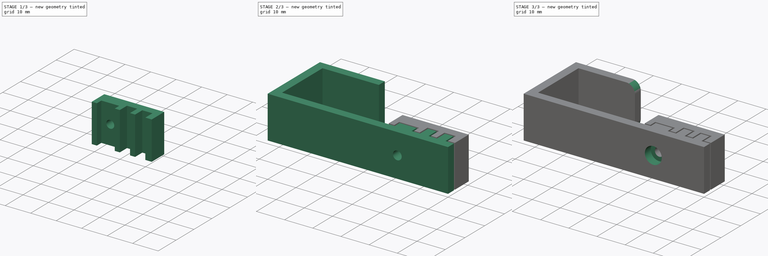
[diagram: build sequence overview — one tinted view per stage of 3, left to right]
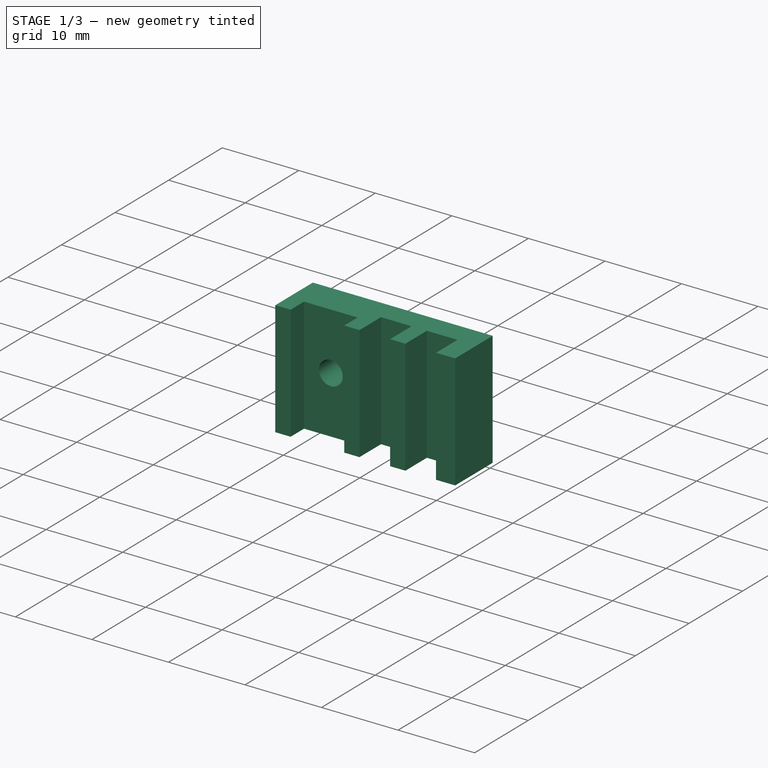
[diagram: stage 1 of 3 — iso view after this stage's code; geometry added in this stage tinted green]
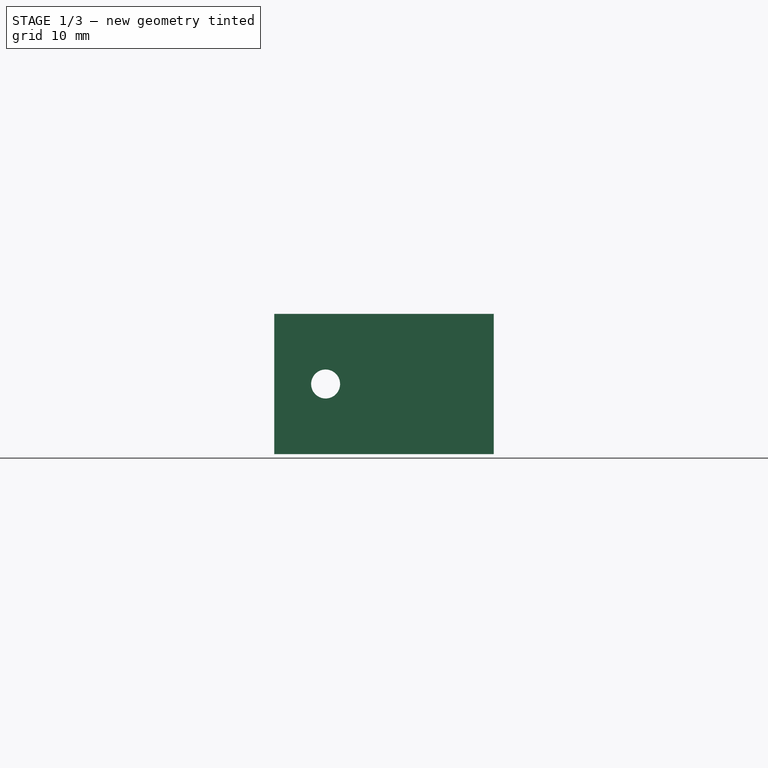
[diagram: stage 1 of 3 — front view after this stage's code; geometry added in this stage tinted green]
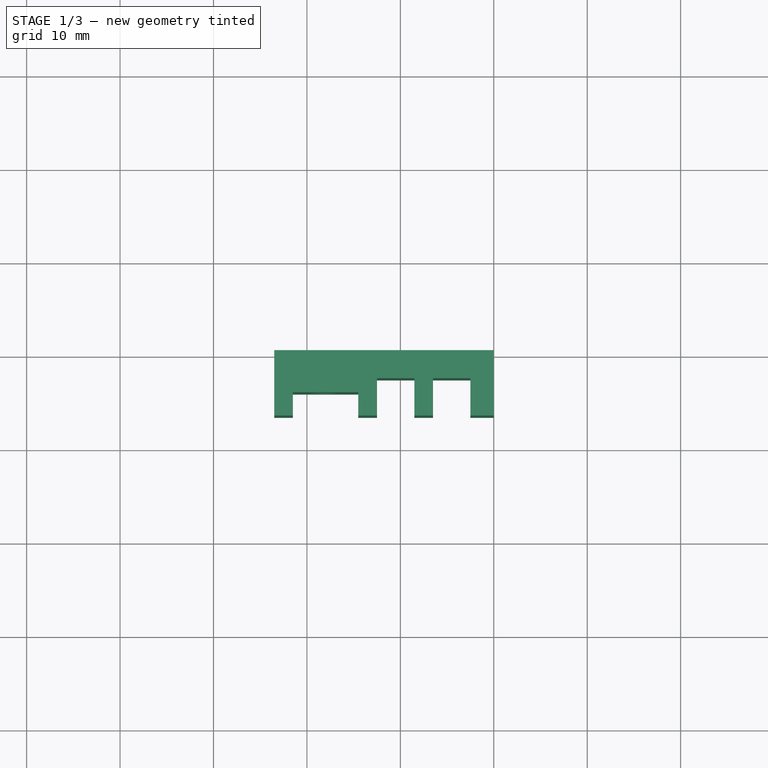
[diagram: stage 1 of 3 — top view after this stage's code; geometry added in this stage tinted green]
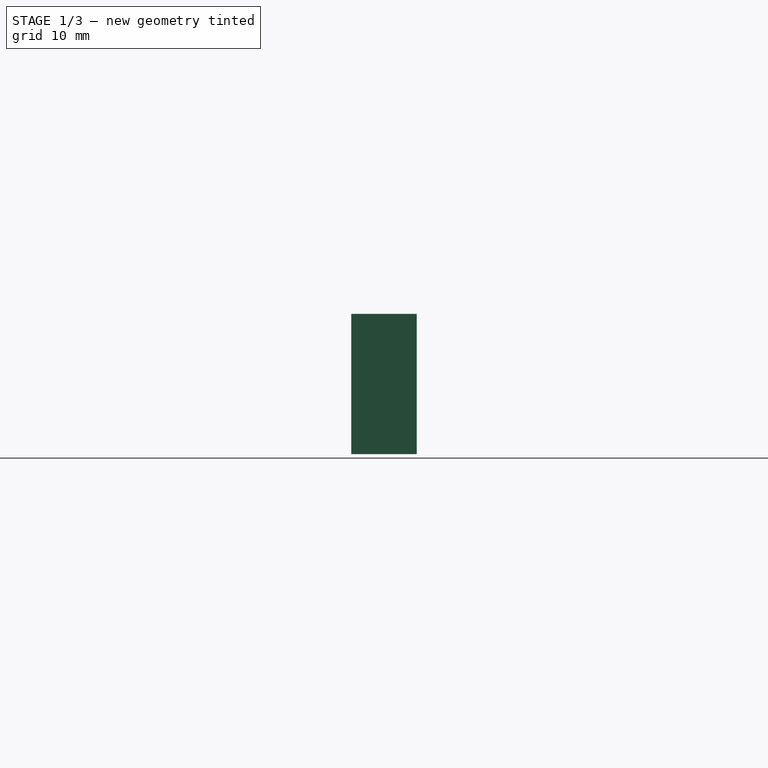
[diagram: stage 1 of 3 — right view after this stage's code; geometry added in this stage tinted green]
FCSTD DOCUMENT  (FreeCAD 1.0R39109 (Git))
Label: TarpKlemme
License: All rights reserved
LicenseURL: http://en.wikipedia.org/wiki/All_rights_reserved
objects: Sketcher::SketchObject×6, PartDesign::Pocket×4, PartDesign::Pad×2, PartDesign::Body×2, PartDesign::Fillet×1
note: 35 computed .brp shape members not serialized (recipe doc carries the construction recipe); baked Part::Feature solids carry a one-line shape summary decoded from their .brp

FEATURE [PartDesign::Body] Body  label="Körper"
  AllowCompound = false
  Group = -> [Sketch,Pad,Sketch001,Pocket,Sketch002,Pocket001,Fillet]
  Origin = -> Origin
  Tip = -> Fillet
FEATURE [Sketcher::SketchObject] Sketch003
  ArcFitTolerance = 1e-06
  AttachmentSupport = -> [XY_Plane001]
  FullyConstrained = true
  MakeInternals = false
  MapMode = 5
  sketch-geometry (16):
    g0: LineSegment StartX=0 StartY=3.5 StartZ=0 EndX=-2.5 EndY=3.5 EndZ=0
    g1: LineSegment StartX=-2.5 StartY=3.5 StartZ=0 EndX=-2.5 EndY=7.5 EndZ=0
    g2: LineSegment StartX=-2.5 StartY=7.5 StartZ=0 EndX=-6.5 EndY=7.5 EndZ=0
    g3: LineSegment StartX=-6.5 StartY=7.5 StartZ=0 EndX=-6.5 EndY=3.5 EndZ=0
    g4: LineSegment StartX=-6.5 StartY=3.5 StartZ=0 EndX=-8.5 EndY=3.5 EndZ=0
    g5: LineSegment StartX=-8.5 StartY=3.5 StartZ=0 EndX=-8.5 EndY=7.5 EndZ=0
    g6: LineSegment StartX=-8.5 StartY=7.5 StartZ=0 EndX=-12.5 EndY=7.5 EndZ=0
    g7: LineSegment StartX=-12.5 StartY=7.5 StartZ=0 EndX=-12.5 EndY=3.5 EndZ=0
    g8: LineSegment StartX=-12.5 StartY=3.5 StartZ=0 EndX=-14.5 EndY=3.5 EndZ=0
    g9: LineSegment StartX=-14.5 StartY=3.5 StartZ=0 EndX=-14.5 EndY=6 EndZ=0
    g10: LineSegment StartX=-14.5 StartY=6 StartZ=0 EndX=-21.5 EndY=6 EndZ=0
    g11: LineSegment StartX=-21.5 StartY=6 StartZ=0 EndX=-21.5 EndY=3.5 EndZ=0
    g12: LineSegment StartX=-21.5 StartY=3.5 StartZ=0 EndX=-23.5 EndY=3.5 EndZ=0
    g13: LineSegment StartX=-23.5 StartY=3.5 StartZ=0 EndX=-23.5 EndY=10.5 EndZ=0
    g14: LineSegment StartX=-23.5 StartY=10.5 StartZ=0 EndX=0 EndY=10.5 EndZ=0
    g15: LineSegment StartX=0 StartY=10.5 StartZ=0 EndX=0 EndY=3.5 EndZ=0
  constraints (48):
    c: PointOnObject(g0,g-2)
    c: Horizontal(g0)
    c: Coincident(g0,g1)
    c: Vertical(g1)
    c: Coincident(g1,g2)
    c: Horizontal(g2)
    c: Coincident(g2,g3)
    c: Vertical(g3)
    c: Coincident(g3,g4)
    c: Horizontal(g4)
    c: Coincident(g4,g5)
    c: Vertical(g5)
    c: Coincident(g5,g6)
    c: Horizontal(g6)
    c: Coincident(g6,g7)
    c: Vertical(g7)
    c: Coincident(g7,g8)
    c: Horizontal(g8)
    c: Coincident(g8,g9)
    c: Vertical(g9)
    c: Coincident(g9,g10)
    c: Horizontal(g10)
    c: Coincident(g10,g11)
    c: Vertical(g11)
    c: Coincident(g11,g12)
    c: Horizontal(g12)
    c: Coincident(g12,g13)
    c: Vertical(g13)
    c: Coincident(g13,g14)
    c: Horizontal(g14)
    c: Coincident(g14,g15)
    c: Coincident(g15,g0)
    c: Vertical(g15)
    c: Horizontal(g5,g1)
    c: Horizontal(g7,g3)
    c: Horizontal(g3,g0)
    c: Equal(g12,g8)
    c: Equal(g8,g4)
    c: Equal(g6,g2)
    c: DistanceX(g0,g0) = 2.5
    c: DistanceX(g4,g4) = 2
    c: DistanceX(g2,g2) = 4
    c: DistanceX(g10,g10) = 7
    c: Distance(g1,g14) = 3
    c: DistanceY(g-1,g0) = 3.5
    c: DistanceY(g1,g1) = 4
    c: DistanceY(g11,g11) = 2.5
    c: Horizontal(g12,g0)
FEATURE [PartDesign::Pad] Pad001
  Direction = (0,0,1)
  Length = 15
  Length2 = 10
  Profile = -> Sketch003
  ReferenceAxis = -> Sketch003 [N_Axis]
  Suppressed = false
  Type = 0
FEATURE [Sketcher::SketchObject] Sketch004
  ArcFitTolerance = 1e-06
  AttachmentSupport = -> [Pad001]
  ExternalGeometry = -> [Pad001]
  FullyConstrained = true
  MakeInternals = false
  MapMode = 5
  Placement = pos=(0,10.5,0) rot=(0,0.707107,0.707107;3.14159rad)
  sketch-geometry (1):
    g0: Circle CenterX=18 CenterY=7.5 CenterZ=0 NormalX=0 NormalY=0 NormalZ=1 AngleXU=0 Radius=1.55
  constraints (3):
    c: Diameter(g0) = 3.1
    c: Distance(g0,g-4) = 7.5
    c: Distance(g0,g-3) = 5.5
FEATURE [PartDesign::Pocket] Pocket002
  BaseFeature = -> Pad001
  Direction = (0,-1,2e-16)
  Length = 5
  Length2 = 5
  Profile = -> Sketch004
  ReferenceAxis = -> Sketch004 [N_Axis]
  Suppressed = false
  Type = 0
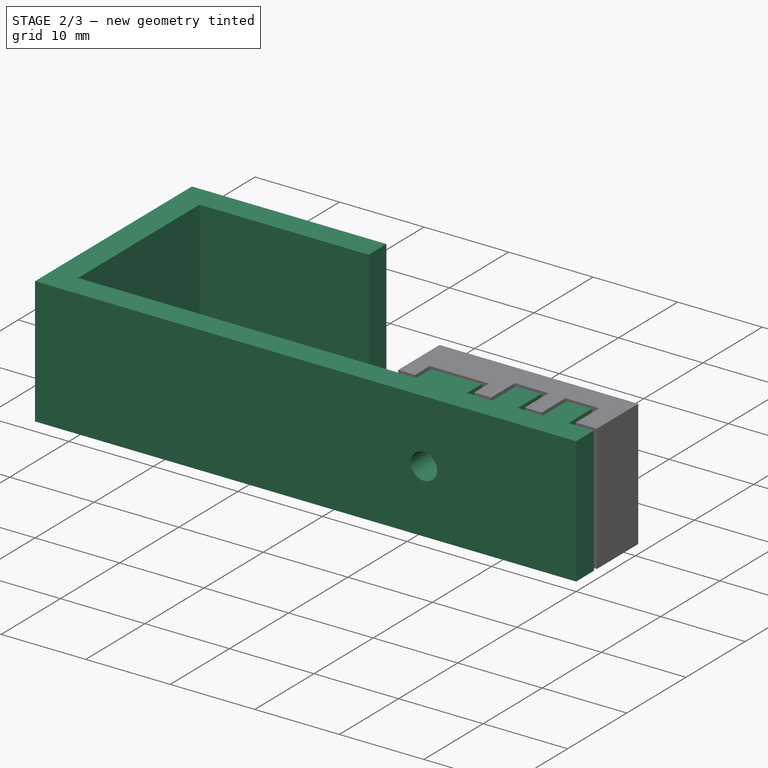
[diagram: stage 2 of 3 — iso view after this stage's code; geometry added in this stage tinted green]
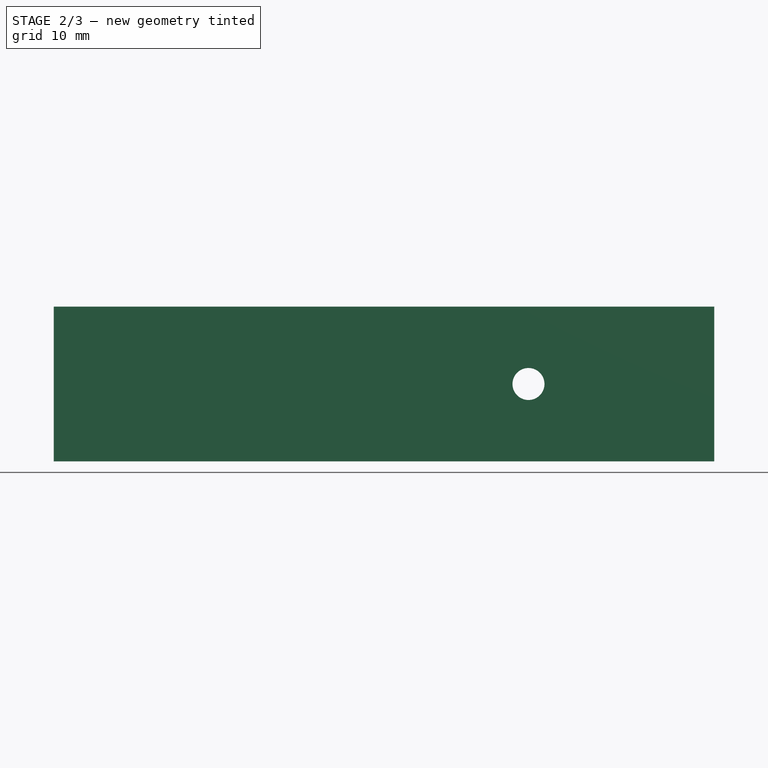
[diagram: stage 2 of 3 — front view after this stage's code; geometry added in this stage tinted green]
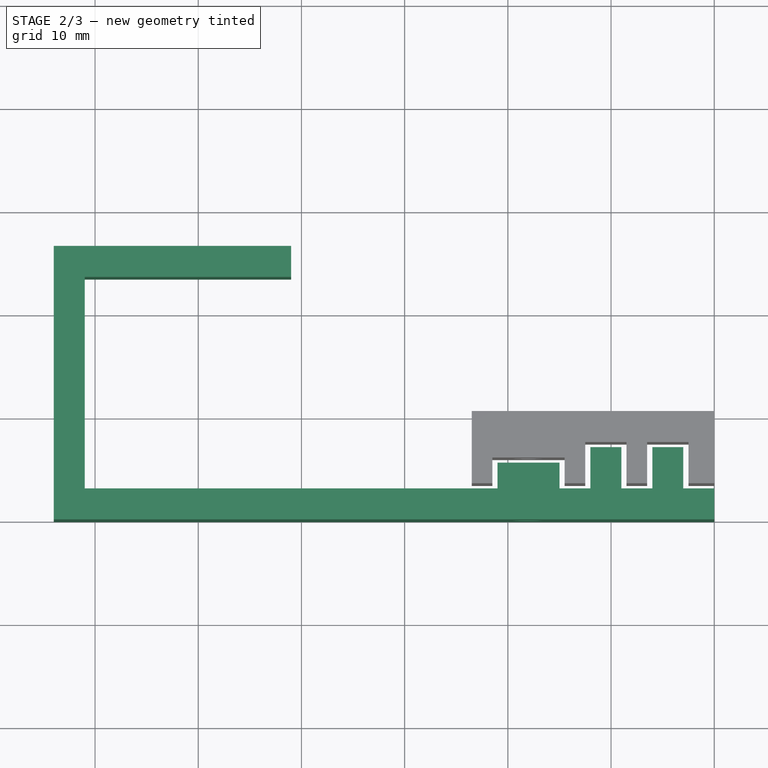
[diagram: stage 2 of 3 — top view after this stage's code; geometry added in this stage tinted green]
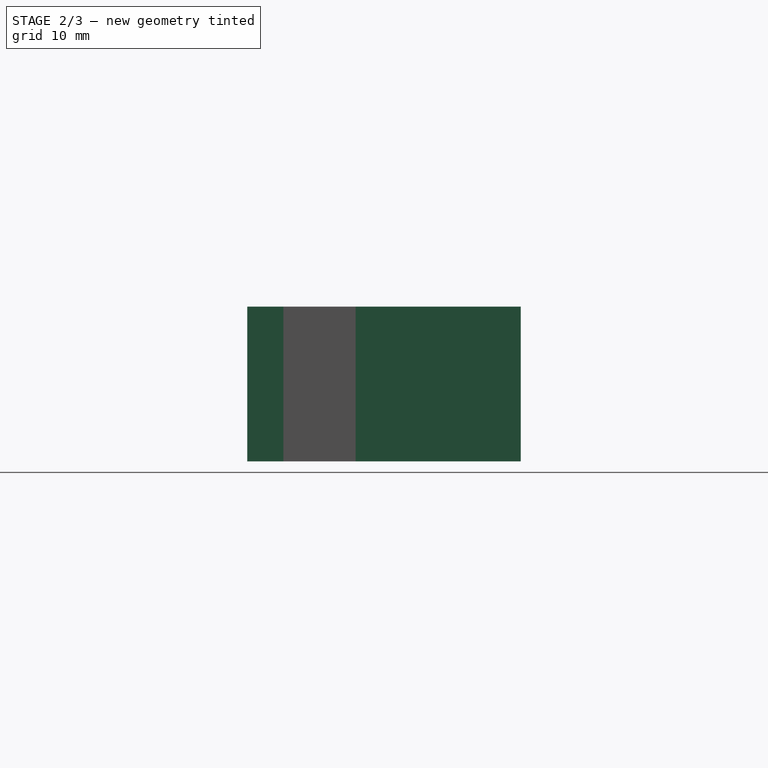
[diagram: stage 2 of 3 — right view after this stage's code; geometry added in this stage tinted green]
FEATURE [Sketcher::SketchObject] Sketch
  ArcFitTolerance = 1e-06
  AttachmentSupport = -> [XY_Plane]
  FullyConstrained = true
  MakeInternals = false
  MapMode = 5
  sketch-geometry (20):
    g0: LineSegment StartX=0 StartY=0 StartZ=0 EndX=-64 EndY=0 EndZ=0
    g1: LineSegment StartX=-64 StartY=0 StartZ=0 EndX=-64 EndY=26.5 EndZ=0
    g2: LineSegment StartX=-64 StartY=26.5 StartZ=0 EndX=-41 EndY=26.5 EndZ=0
    g3: LineSegment StartX=-41 StartY=26.5 StartZ=0 EndX=-41 EndY=23.5 EndZ=0
    g4: LineSegment StartX=-41 StartY=23.5 StartZ=0 EndX=-61 EndY=23.5 EndZ=0
    g5: LineSegment StartX=-61 StartY=23.5 StartZ=0 EndX=-61 EndY=3 EndZ=0
    g6: LineSegment StartX=-61 StartY=3 StartZ=0 EndX=-21 EndY=3 EndZ=0
    g7: LineSegment StartX=-21 StartY=3 StartZ=0 EndX=-21 EndY=5.5 EndZ=0
    g8: LineSegment StartX=-21 StartY=5.5 StartZ=0 EndX=-15 EndY=5.5 EndZ=0
    g9: LineSegment StartX=-15 StartY=5.5 StartZ=0 EndX=-15 EndY=3 EndZ=0
    g10: LineSegment StartX=-15 StartY=3 StartZ=0 EndX=-12 EndY=3 EndZ=0
    g11: LineSegment StartX=-12 StartY=3 StartZ=0 EndX=-12 EndY=7 EndZ=0
    g12: LineSegment StartX=-12 StartY=7 StartZ=0 EndX=-9 EndY=7 EndZ=0
    g13: LineSegment StartX=-9 StartY=7 StartZ=0 EndX=-9 EndY=3 EndZ=0
    g14: LineSegment StartX=-9 StartY=3 StartZ=0 EndX=-6 EndY=3 EndZ=0
    g15: LineSegment StartX=-6 StartY=3 StartZ=0 EndX=-6 EndY=7 EndZ=0
    g16: LineSegment StartX=-6 StartY=7 StartZ=0 EndX=-3 EndY=7 EndZ=0
    g17: LineSegment StartX=-3 StartY=7 StartZ=0 EndX=-3 EndY=3 EndZ=0
    g18: LineSegment StartX=-3 StartY=3 StartZ=0 EndX=0 EndY=3 EndZ=0
    g19: LineSegment StartX=0 StartY=3 StartZ=0 EndX=0 EndY=0 EndZ=0
  constraints (59):
    c: Coincident(g-1,g0)
    c: PointOnObject(g0,g-1)
    c: Coincident(g0,g1)
    c: Vertical(g1)
    c: Coincident(g1,g2)
    c: Horizontal(g2)
    c: Coincident(g2,g3)
    c: Coincident(g3,g4)
    c: Horizontal(g4)
    c: Coincident(g4,g5)
    c: Vertical(g5)
    c: Coincident(g5,g6)
    c: Horizontal(g6)
    c: Coincident(g6,g7)
    c: Vertical(g7)
    c: Coincident(g7,g8)
    c: Coincident(g8,g9)
    c: Coincident(g9,g10)
    c: Coincident(g10,g11)
    c: Vertical(g11)
    c: Coincident(g11,g12)
    c: Horizontal(g12)
    c: Coincident(g12,g13)
    c: Coincident(g13,g14)
    c: Horizontal(g14)
    c: Coincident(g14,g15)
    c: Coincident(g15,g16)
    c: Coincident(g16,g17)
    c: Coincident(g17,g18)
    c: PointOnObject(g18,g-2)
    c: Horizontal(g18)
    c: Coincident(g18,g19)
    c: Coincident(g19,g0)
    c: Vertical(g9)
    c: Vertical(g15)
    c: Vertical(g17)
    c: Horizontal(g8)
    c: Horizontal(g10)
    c: Horizontal(g16)
    c: Horizontal(g12,g16)
    c: Horizontal(g6,g10)
    c: Horizontal(g10,g14)
    c: Horizontal(g14,g18)
    c: DistanceY(g19,g19) = 3
    c: Equal(g12,g16)
    c: Equal(g10,g14)
    c: Equal(g14,g18)
    c: Vertical(g13)
    c: DistanceX(g18,g18) = 3
    c: DistanceX(g16,g16) = 3
    c: DistanceY(g17,g17) = 4
    c: Distance(g5,g1) = 3
    c: Vertical(g3)
    c: DistanceY(g3,g2) = 3
    c: DistanceX(g4,g4) = 20
    c: DistanceX(g6,g6) = 40
    c: DistanceY(g5,g5) = 20.5
    c: DistanceX(g8,g8) = 6
    c: DistanceY(g7,g7) = 2.5
FEATURE [PartDesign::Pad] Pad
  Direction = (0,0,1)
  Length = 15
  Length2 = 10
  Profile = -> Sketch
  ReferenceAxis = -> Sketch [N_Axis]
  Suppressed = false
  Type = 0
FEATURE [Sketcher::SketchObject] Sketch001
  ArcFitTolerance = 1e-06
  AttachmentSupport = -> [Pad]
  ExternalGeometry = -> [Pad]
  FullyConstrained = true
  MakeInternals = false
  MapMode = 5
  Placement = pos=(0,5.5,0) rot=(0,0.707107,0.707107;3.14159rad)
  sketch-geometry (1):
    g0: Circle CenterX=18 CenterY=7.5 CenterZ=0 NormalX=0 NormalY=0 NormalZ=1 AngleXU=0 Radius=1.55
  constraints (3):
    c: DistanceY(g-1,g0) = 7.5
    c: Distance(g0,g-3) = 3
    c: Diameter(g0) = 3.1
FEATURE [PartDesign::Pocket] Pocket
  BaseFeature = -> Pad
  Direction = (0,-1,2e-16)
  Length = 5
  Length2 = 5
  Profile = -> Sketch001
  ReferenceAxis = -> Sketch001 [N_Axis]
  Suppressed = false
  Type = 1
FEATURE [Sketcher::SketchObject] Sketch005
  ArcFitTolerance = 1e-06
  AttachmentSupport = -> [Pocket002]
  ExternalGeometry = -> [Pocket002]
  FullyConstrained = true
  MakeInternals = false
  MapMode = 5
  Placement = pos=(0,10.5,0) rot=(0,0.707107,0.707107;3.14159rad)
  sketch-geometry (7):
    g0: LineSegment StartX=20.75 StartY=5.91229 StartZ=0 EndX=20.75 EndY=9.08771 EndZ=0
    g1: LineSegment StartX=20.75 StartY=9.08771 StartZ=0 EndX=18 EndY=10.6754 EndZ=0
    g2: LineSegment StartX=18 StartY=10.6754 StartZ=0 EndX=15.25 EndY=9.08771 EndZ=0
    g3: LineSegment StartX=15.25 StartY=9.08771 StartZ=0 EndX=15.25 EndY=5.91229 EndZ=0
    g4: LineSegment StartX=15.25 StartY=5.91229 StartZ=0 EndX=18 EndY=4.32457 EndZ=0
    g5: LineSegment StartX=18 StartY=4.32457 StartZ=0 EndX=20.75 EndY=5.91229 EndZ=0
    g6: Circle [constr] CenterX=18 CenterY=7.5 CenterZ=0 NormalX=0 NormalY=0 NormalZ=1 AngleXU=0 Radius=3.17543
  constraints (16):
    c: Coincident(g0,g1)
    c: Coincident(g1,g2)
    c: Coincident(g2,g3)
    c: Coincident(g3,g4)
    c: Coincident(g4,g5)
    c: Coincident(g5,g0)
    c: Equal(g0, g1-g5) x5
    c: PointOnObject(g0,g6)
    c: PointOnObject(g1,g6)
    c: PointOnObject(g2,g6)
    c: PointOnObject(g3,g6)
    c: PointOnObject(g4,g6)
    c: PointOnObject(g5,g6)
    c: Coincident(g6,g-3)
    c: Distance(g0,g3) = 5.5
    c: Vertical(g0)
FEATURE [PartDesign::Pocket] Pocket003
  BaseFeature = -> Pocket002
  Direction = (0,-1,2e-16)
  Length = 2.5
  Length2 = 5
  Profile = -> Sketch005
  ReferenceAxis = -> Sketch005 [N_Axis]
  Suppressed = false
  Type = 0
FEATURE [PartDesign::Body] Body001  label="Gegenklemme"
  AllowCompound = false
  Group = -> [Sketch003,Pad001,Sketch004,Pocket002,Sketch005,Pocket003]
  Origin = -> Origin001
  Tip = -> Pocket003
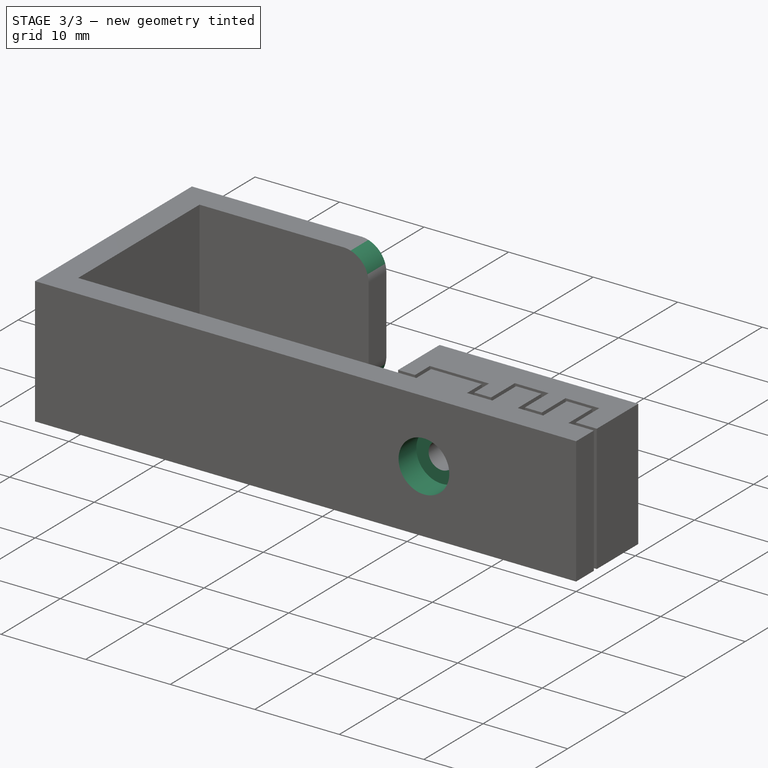
[diagram: stage 3 of 3 — iso view after this stage's code; geometry added in this stage tinted green]
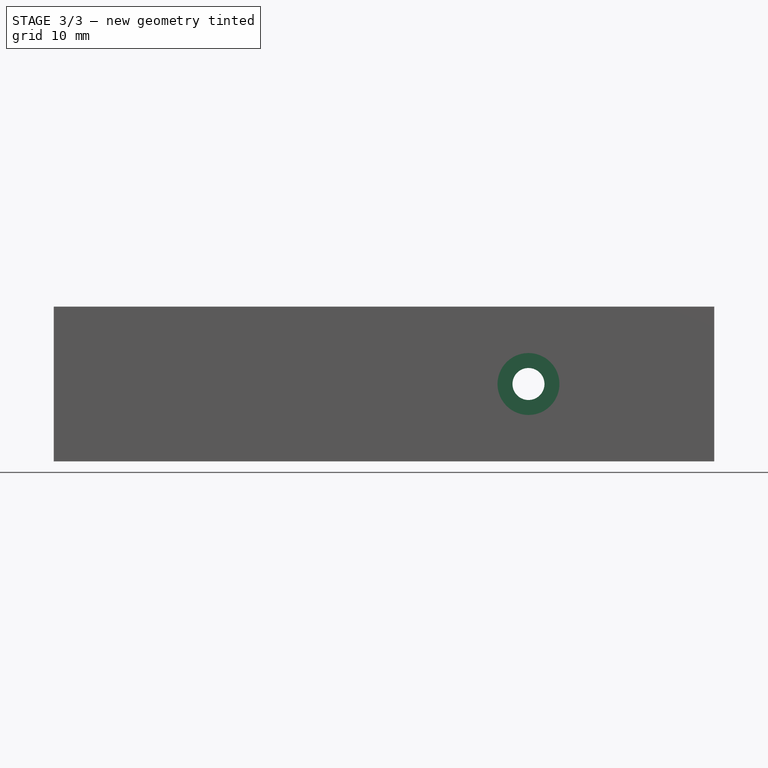
[diagram: stage 3 of 3 — front view after this stage's code; geometry added in this stage tinted green]
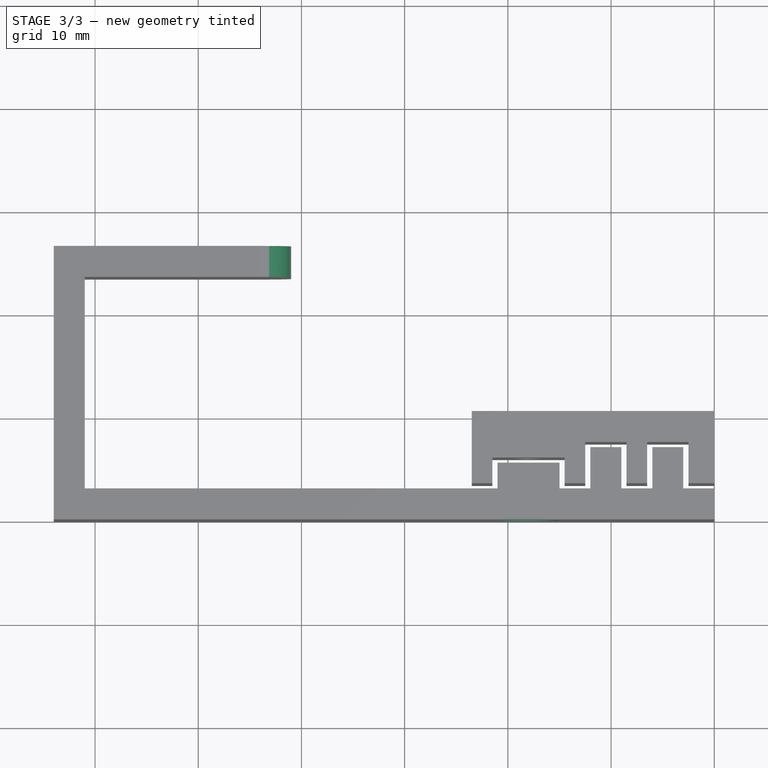
[diagram: stage 3 of 3 — top view after this stage's code; geometry added in this stage tinted green]
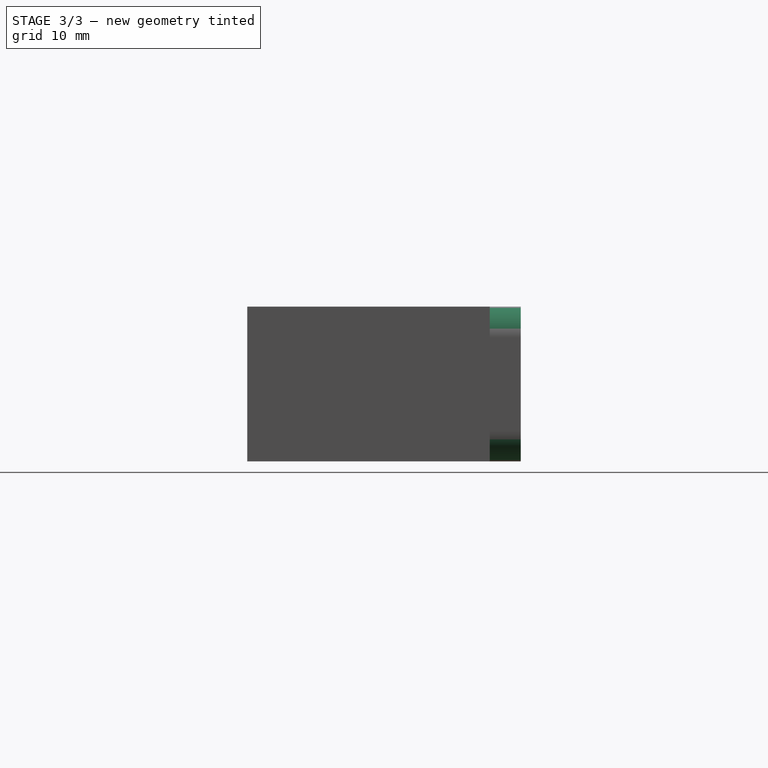
[diagram: stage 3 of 3 — right view after this stage's code; geometry added in this stage tinted green]
FEATURE [Sketcher::SketchObject] Sketch002
  ArcFitTolerance = 1e-06
  AttachmentSupport = -> [Pocket]
  ExternalGeometry = -> [Pocket]
  FullyConstrained = true
  MakeInternals = false
  MapMode = 5
  Placement = pos=(0,0,0) rot=(1,0,0;1.5708rad)
  sketch-geometry (1):
    g0: Circle CenterX=-18 CenterY=7.5 CenterZ=0 NormalX=0 NormalY=0 NormalZ=1 AngleXU=0 Radius=3
  constraints (2):
    c: Diameter(g0) = 6
    c: Coincident(g0,g-3)
FEATURE [PartDesign::Pocket] Pocket001
  BaseFeature = -> Pocket
  Direction = (0,1,-2e-16)
  Length = 3
  Length2 = 5
  Profile = -> Sketch002
  ReferenceAxis = -> Sketch002 [N_Axis]
  Suppressed = false
  Type = 0
FEATURE [PartDesign::Fillet] Fillet
  Base = -> Pocket001 [Edge11,Edge29]
  BaseFeature = -> Pocket001
  Radius = 3
  SupportTransform = false
  Suppressed = false
  UseAllEdges = false
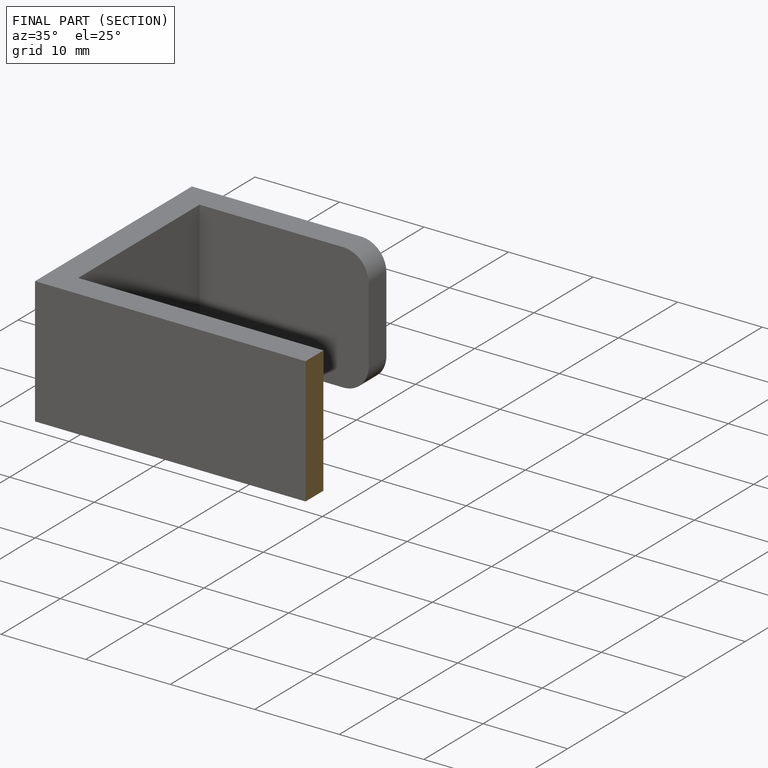
[diagram: finished part — half-section view (interior)]
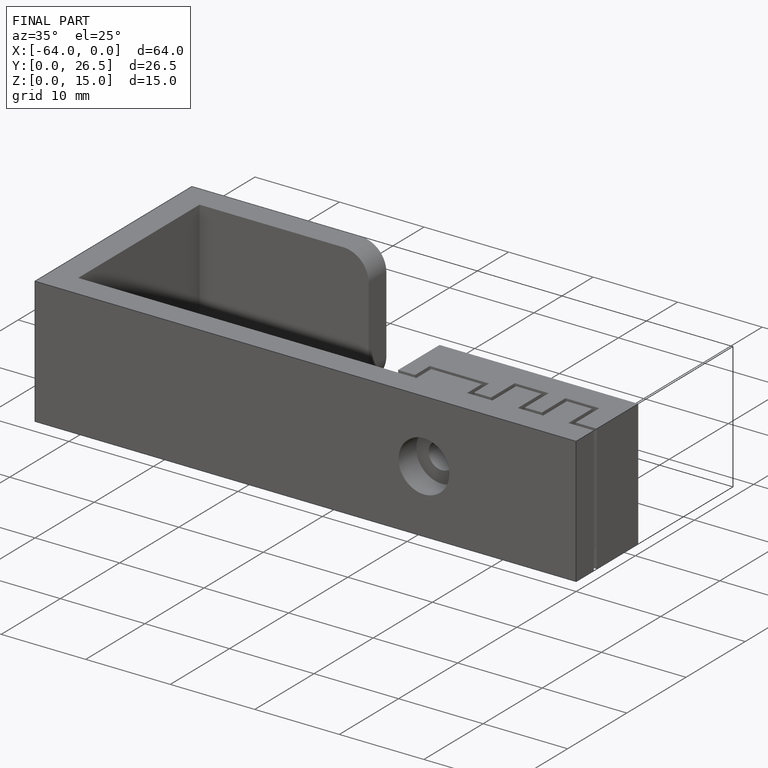
[diagram: finished part — iso view with bounding-box wireframe]
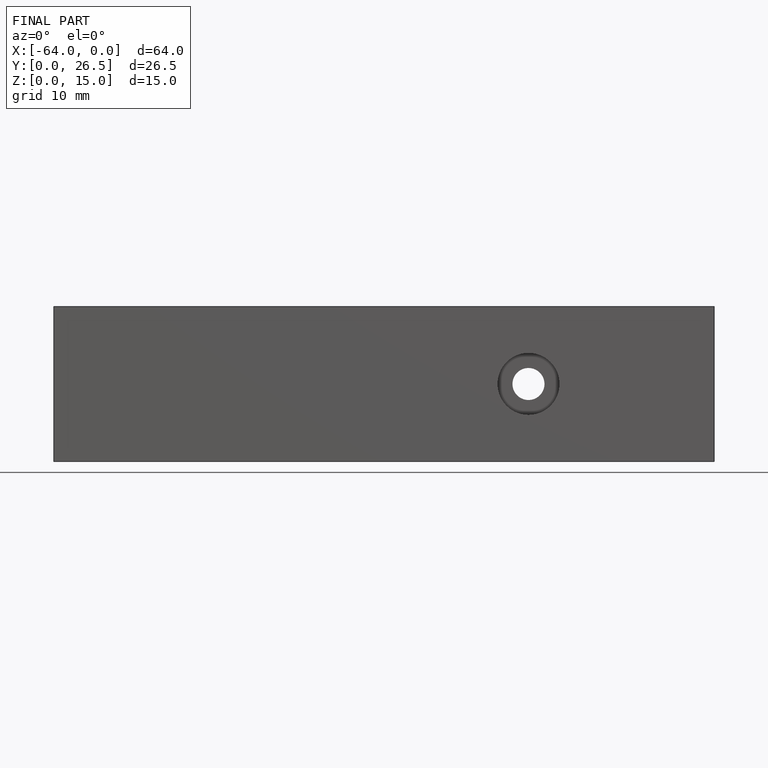
[diagram: finished part — front view with bounding-box wireframe]
